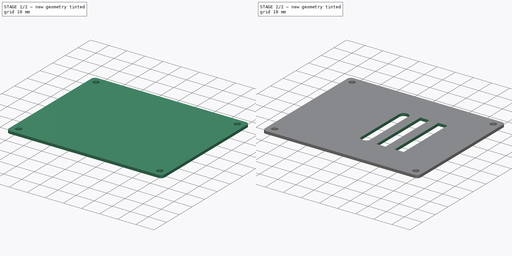
[diagram: build sequence overview — one tinted view per stage of 2, left to right]
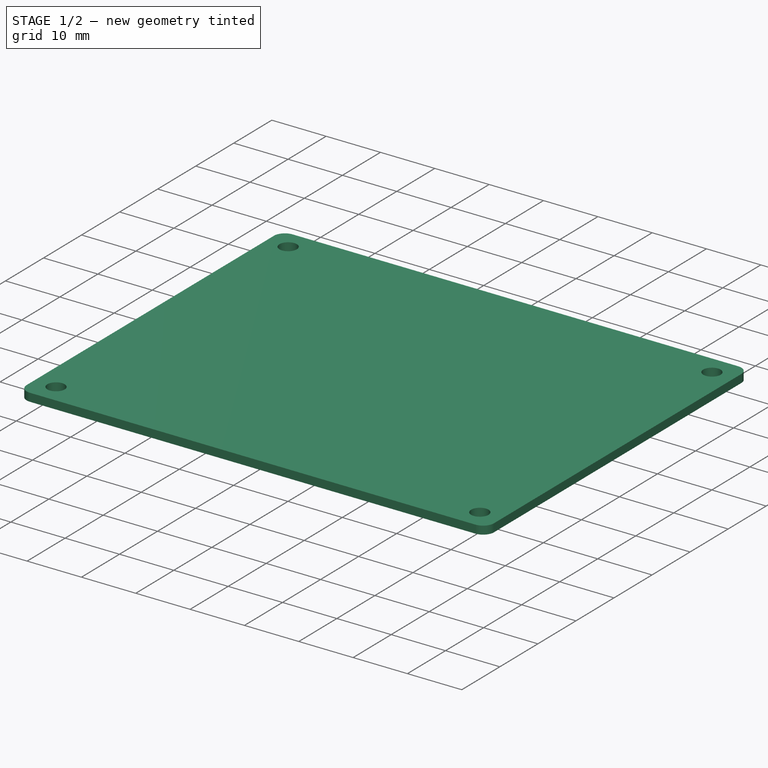
[diagram: stage 1 of 2 — iso view after this stage's code; geometry added in this stage tinted green]
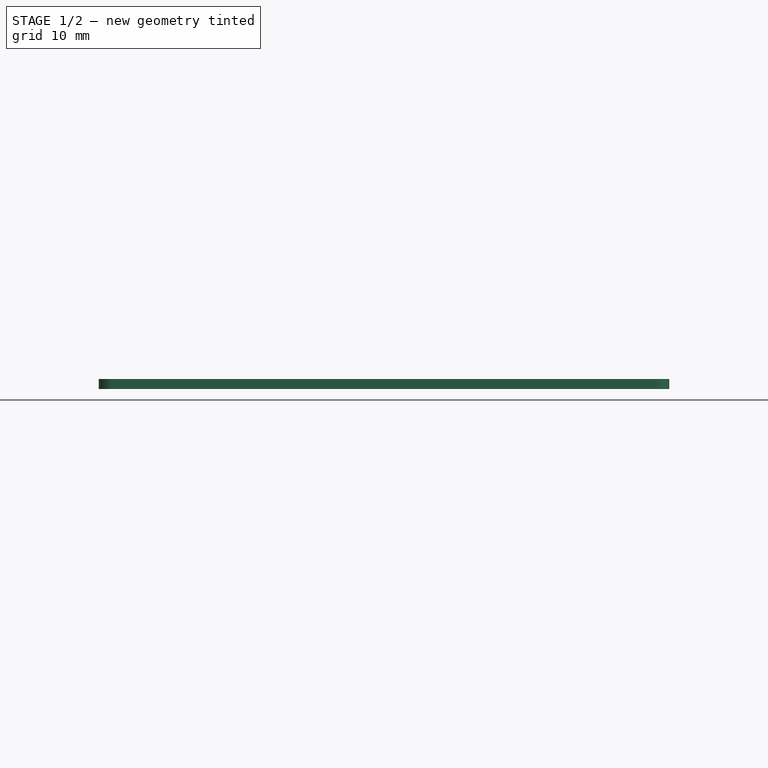
[diagram: stage 1 of 2 — front view after this stage's code; geometry added in this stage tinted green]
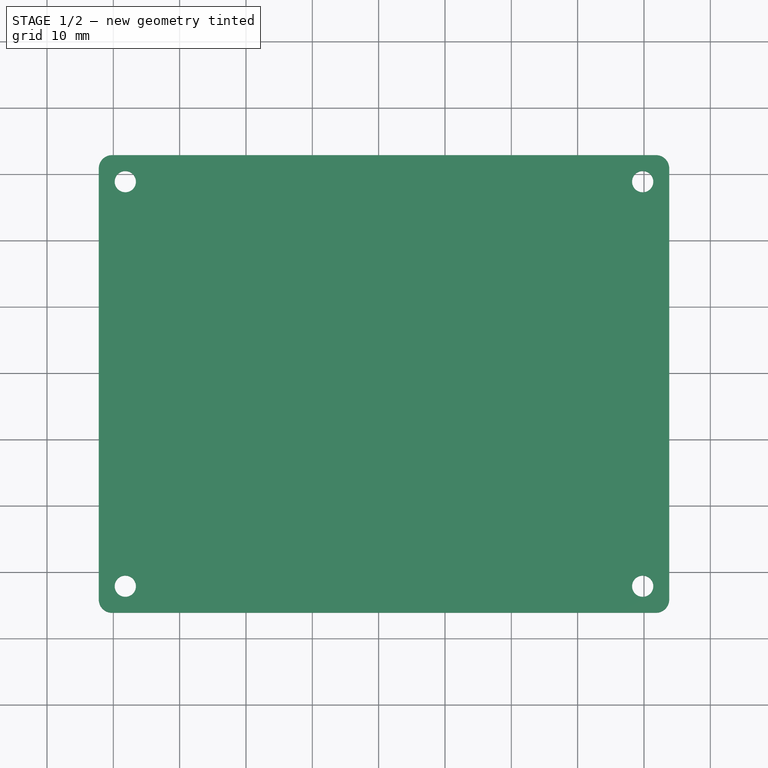
[diagram: stage 1 of 2 — top view after this stage's code; geometry added in this stage tinted green]
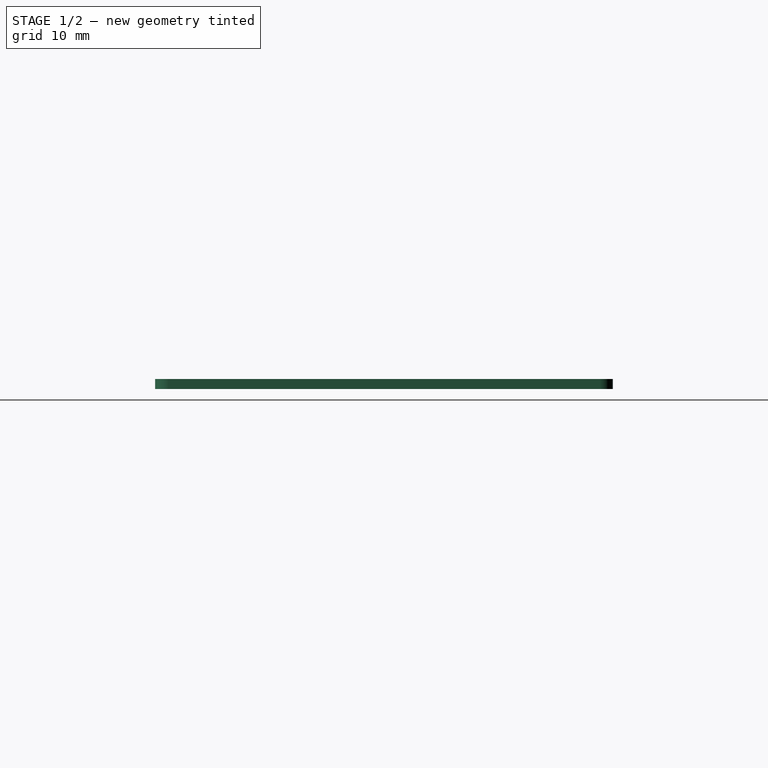
[diagram: stage 1 of 2 — right view after this stage's code; geometry added in this stage tinted green]
FCSTD DOCUMENT  (FreeCAD 1.0R39109 (Git))
Label: backplate
License: All rights reserved
LicenseURL: https://en.wikipedia.org/wiki/All_rights_reserved
objects: Sketcher::SketchObject×2, PartDesign::Fillet×2, PartDesign::Pad×1, PartDesign::Pocket×1, PartDesign::Body×1
note: 17 computed .brp shape members not serialized (recipe doc carries the construction recipe); baked Part::Feature solids carry a one-line shape summary decoded from their .brp

FEATURE [Sketcher::SketchObject] Sketch001
  ArcFitTolerance = 1e-06
  AttachmentSupport = -> [XY_Plane]
  FullyConstrained = false
  MakeInternals = false
  MapMode = 5
  sketch-geometry (8):
    g0: LineSegment StartX=-42.1929 StartY=32.8765 StartZ=0 EndX=-42.1929 EndY=-36.1235 EndZ=0
    g1: LineSegment StartX=-42.1929 StartY=-36.1235 StartZ=0 EndX=43.8071 EndY=-36.1235 EndZ=0
    g2: LineSegment StartX=43.8071 StartY=-36.1235 StartZ=0 EndX=43.8071 EndY=32.8765 EndZ=0
    g3: LineSegment StartX=43.8071 StartY=32.8765 StartZ=0 EndX=-42.1929 EndY=32.8765 EndZ=0
    g4: Circle CenterX=-38.1929 CenterY=28.8765 CenterZ=0 NormalX=0 NormalY=0 NormalZ=1 AngleXU=0 Radius=1.6
    g5: Circle CenterX=39.8071 CenterY=28.8765 CenterZ=0 NormalX=0 NormalY=0 NormalZ=1 AngleXU=0 Radius=1.6
    g6: Circle CenterX=39.8071 CenterY=-32.1235 CenterZ=0 NormalX=0 NormalY=0 NormalZ=1 AngleXU=0 Radius=1.6
    g7: Circle CenterX=-38.1929 CenterY=-32.1235 CenterZ=0 NormalX=0 NormalY=0 NormalZ=1 AngleXU=0 Radius=1.6
  constraints (22):
    c: Coincident(g0,g1)
    c: Coincident(g1,g2)
    c: Coincident(g2,g3)
    c: Coincident(g3,g0)
    c: Vertical(g0)
    c: Vertical(g2)
    c: Horizontal(g1)
    c: Horizontal(g3)
    c: DistanceX(g0,g2) = 86
    c: DistanceY(g1,g2) = 69
    c: Diameter(g4) = 3.2
    c: Diameter(g5) = 3.2
    c: Diameter(g6) = 3.2
    c: Diameter(g7) = 3.2
    c: DistanceX(g0,g4) = 4
    c: DistanceY(g4,g0) = 4
    c: DistanceX(g0,g7) = 4
    c: DistanceY(g0,g7) = 4
    c: DistanceX(g5,g2) = 4
    c: DistanceY(g5,g2) = 4
    c: DistanceX(g6,g1) = 4
    c: DistanceY(g1,g6) = 4
FEATURE [PartDesign::Pad] Pad
  Direction = (0,0,1)
  Length = 1.5
  Length2 = 10
  Profile = -> Sketch001
  ReferenceAxis = -> Sketch001 [N_Axis]
  Refine = true
  Suppressed = false
  Type = 0
FEATURE [PartDesign::Fillet] Fillet
  Base = -> Pad [Edge5,Edge8,Edge1,Edge2]
  BaseFeature = -> Pad
  Radius = 2
  Refine = true
  SupportTransform = false
  Suppressed = false
  UseAllEdges = false
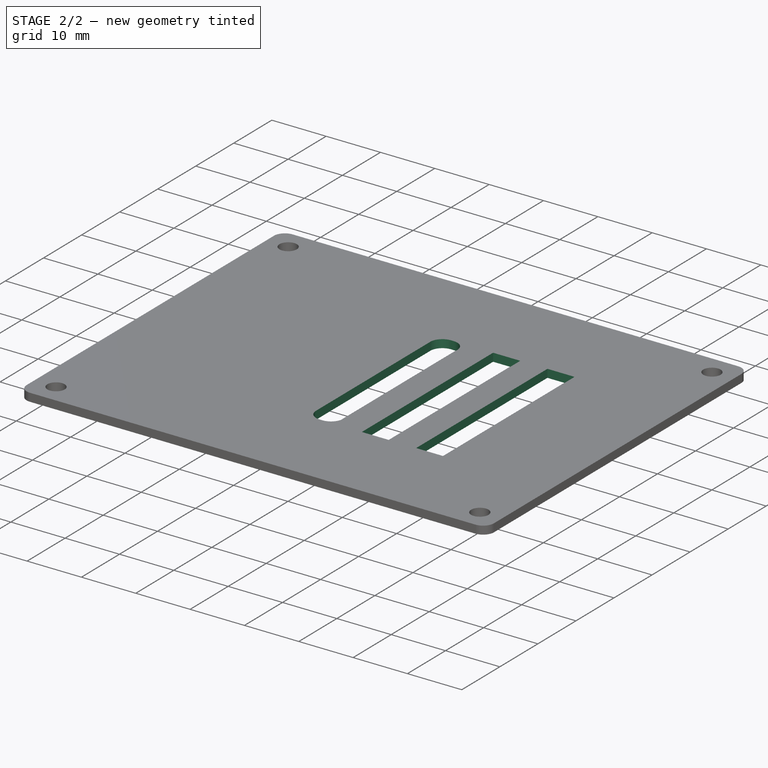
[diagram: stage 2 of 2 — iso view after this stage's code; geometry added in this stage tinted green]
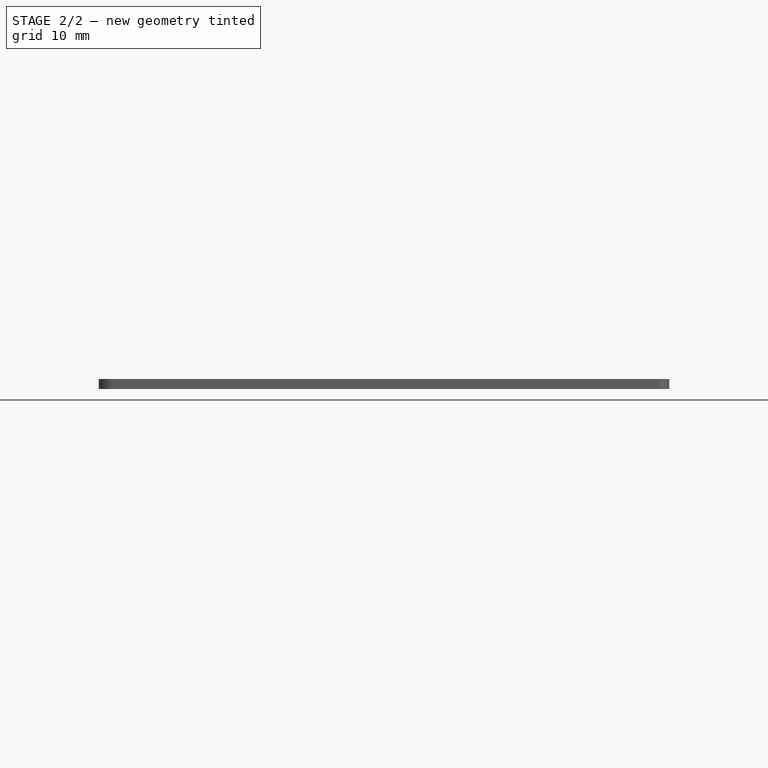
[diagram: stage 2 of 2 — front view after this stage's code; geometry added in this stage tinted green]
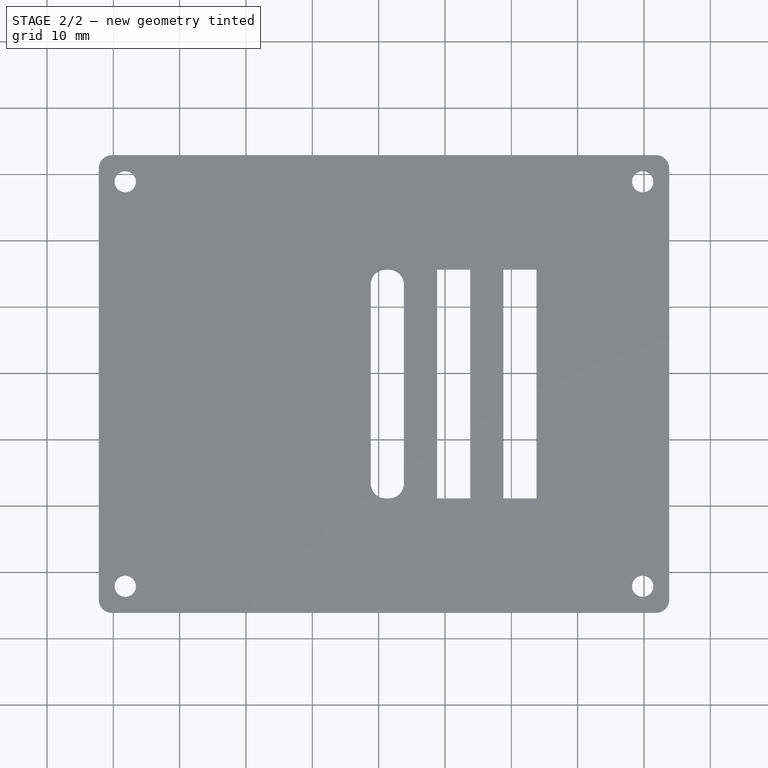
[diagram: stage 2 of 2 — top view after this stage's code; geometry added in this stage tinted green]
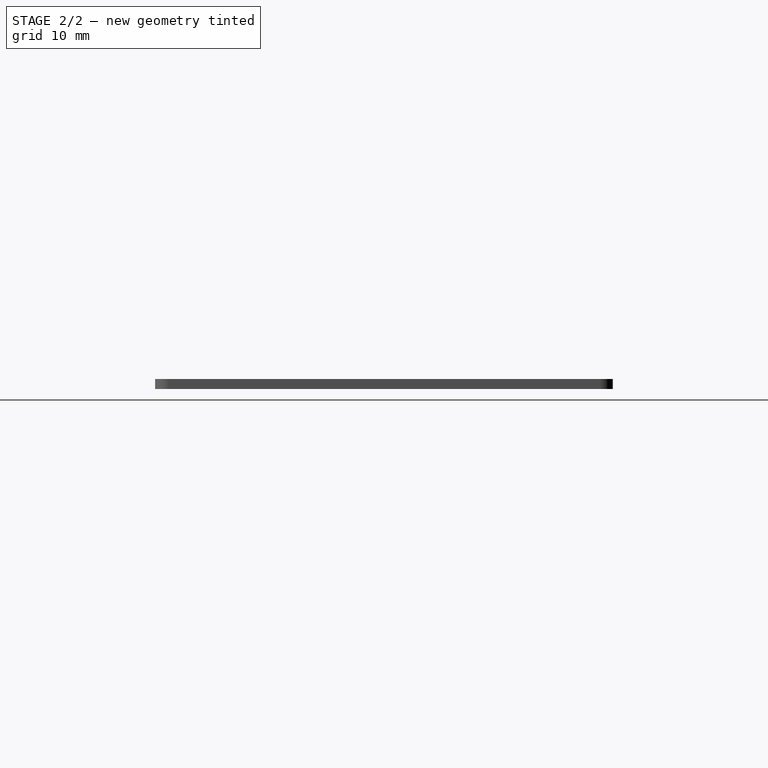
[diagram: stage 2 of 2 — right view after this stage's code; geometry added in this stage tinted green]
FEATURE [Sketcher::SketchObject] Sketch
  ArcFitTolerance = 1e-06
  AttachmentSupport = -> [Fillet]
  ExternalGeometry = -> [Fillet]
  FullyConstrained = true
  MakeInternals = false
  MapMode = 5
  Placement = pos=(0,0,1.5) rot=(0,0,1;0rad)
  sketch-geometry (16):
    g0: LineSegment StartX=18.8071 StartY=15.6265 StartZ=0 EndX=18.8071 EndY=-18.8735 EndZ=0
    g1: LineSegment StartX=18.8071 StartY=-18.8735 StartZ=0 EndX=23.8071 EndY=-18.8735 EndZ=0
    g2: LineSegment StartX=23.8071 StartY=-18.8735 StartZ=0 EndX=23.8071 EndY=15.6265 EndZ=0
    g3: LineSegment StartX=23.8071 StartY=15.6265 StartZ=0 EndX=18.8071 EndY=15.6265 EndZ=0
    g4: LineSegment StartX=8.80707 StartY=15.6265 StartZ=0 EndX=8.80707 EndY=-18.8735 EndZ=0
    g5: LineSegment StartX=8.80707 StartY=-18.8735 StartZ=0 EndX=13.8071 EndY=-18.8735 EndZ=0
    g6: LineSegment StartX=13.8071 StartY=-18.8735 StartZ=0 EndX=13.8071 EndY=15.6265 EndZ=0
    g7: LineSegment StartX=13.8071 StartY=15.6265 StartZ=0 EndX=8.80707 EndY=15.6265 EndZ=0
    g8: LineSegment StartX=-1.19293 StartY=15.6265 StartZ=0 EndX=-1.19293 EndY=-18.8735 EndZ=0
    g9: LineSegment StartX=-1.19293 StartY=-18.8735 StartZ=0 EndX=3.80707 EndY=-18.8735 EndZ=0
    g10: LineSegment StartX=3.80707 StartY=-18.8735 StartZ=0 EndX=3.80707 EndY=15.6265 EndZ=0
    g11: LineSegment StartX=3.80707 StartY=15.6265 StartZ=0 EndX=-1.19293 EndY=15.6265 EndZ=0
    g12: LineSegment [constr] StartX=13.8071 StartY=15.6265 StartZ=0 EndX=18.8071 EndY=15.6265 EndZ=0
    g13: LineSegment [constr] StartX=3.80707 StartY=15.6265 StartZ=0 EndX=8.80707 EndY=15.6265 EndZ=0
    g14: LineSegment [constr] StartX=13.8071 StartY=-18.8735 StartZ=0 EndX=18.8071 EndY=-18.8735 EndZ=0
    g15: LineSegment [constr] StartX=8.80707 StartY=-18.8735 StartZ=0 EndX=3.80707 EndY=-18.8735 EndZ=0
  constraints (45):
    c: Coincident(g0,g1)
    c: Coincident(g1,g2)
    c: Coincident(g2,g3)
    c: Coincident(g3,g0)
    c: Vertical(g0)
    c: Vertical(g2)
    c: Horizontal(g1)
    c: Horizontal(g3)
    c: Distance(g0,g2) = 5
    c: Distance(g1,g3) = 34.5
    c: DistanceX(g2,g-8) = 20
    c: Coincident(g4,g5)
    c: Coincident(g5,g6)
    c: Coincident(g6,g7)
    c: Coincident(g7,g4)
    c: Vertical(g4)
    c: Vertical(g6)
    c: Horizontal(g5)
    c: Horizontal(g7)
    c: Coincident(g8,g9)
    c: Coincident(g9,g10)
    c: Coincident(g10,g11)
    c: Coincident(g11,g8)
    c: Vertical(g8)
    c: Vertical(g10)
    c: Horizontal(g9)
    c: Horizontal(g11)
    c: Equal(g7,g3)
    c: Equal(g6,g2)
    c: Equal(g11,g3)
    c: Equal(g10,g2)
    c: DistanceY(g6,g0) = 0
    c: PointOnObject(g12,g6)
    c: Coincident(g12,g0)
    c: Horizontal(g12)
    c: DistanceX(g12,g0) = 5
    c: Coincident(g13,g10)
    c: Coincident(g13,g4)
    c: Equal(g13,g12)
    c: Coincident(g14,g5)
    c: Coincident(g14,g0)
    c: Coincident(g15,g4)
    c: Coincident(g15,g9)
    c: Horizontal(g15)
    c: DistanceY(g2,g-8) = 17.25
FEATURE [PartDesign::Pocket] Pocket
  BaseFeature = -> Fillet
  Direction = (0,0,-1)
  Length = 5
  Length2 = 5
  Profile = -> Sketch
  ReferenceAxis = -> Sketch [N_Axis]
  Refine = true
  Suppressed = false
  Type = 0
FEATURE [PartDesign::Fillet] Fillet001
  Base = -> Pocket [?Edge59,?Edge63,Edge68,Edge69,?Edge64,?Edge60,Edge71,?Edge66,?Edge62,Edge70,?Edge65,?Edge61]
  BaseFeature = -> Pocket
  Radius = 2.25
  Refine = true
  SupportTransform = false
  Suppressed = false
  UseAllEdges = false
FEATURE [PartDesign::Body] Body
  AllowCompound = false
  Group = -> [Sketch001,Pad,Fillet,Sketch,Pocket,Fillet001]
  Origin = -> Origin
  Tip = -> Fillet001
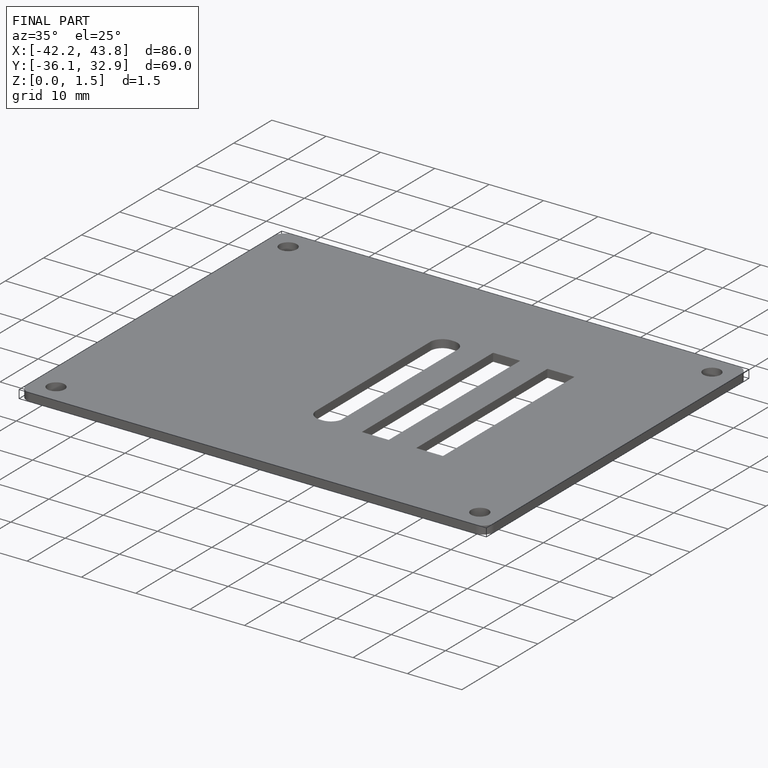
[diagram: finished part — iso view with bounding-box wireframe]
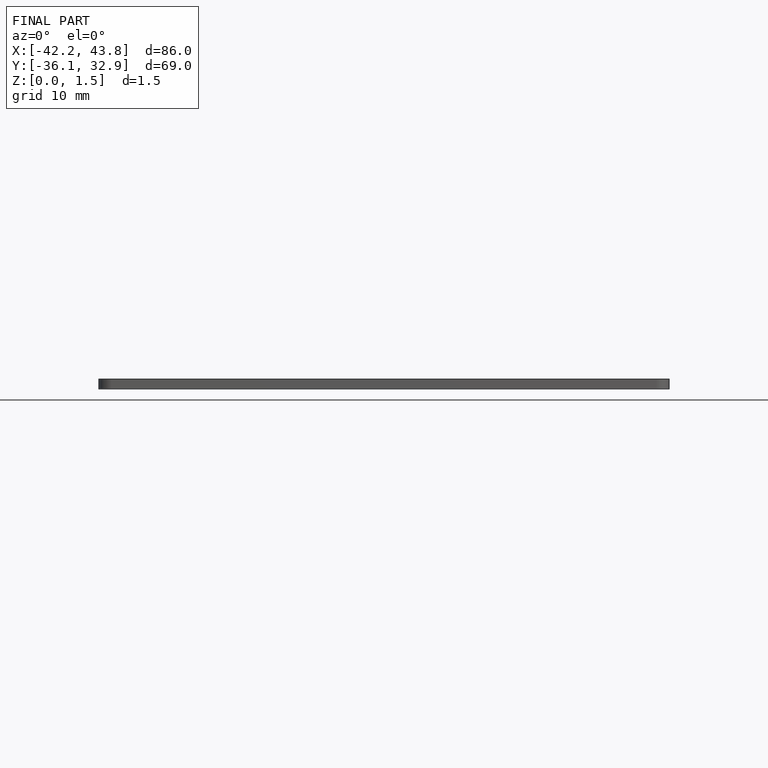
[diagram: finished part — front view with bounding-box wireframe]
